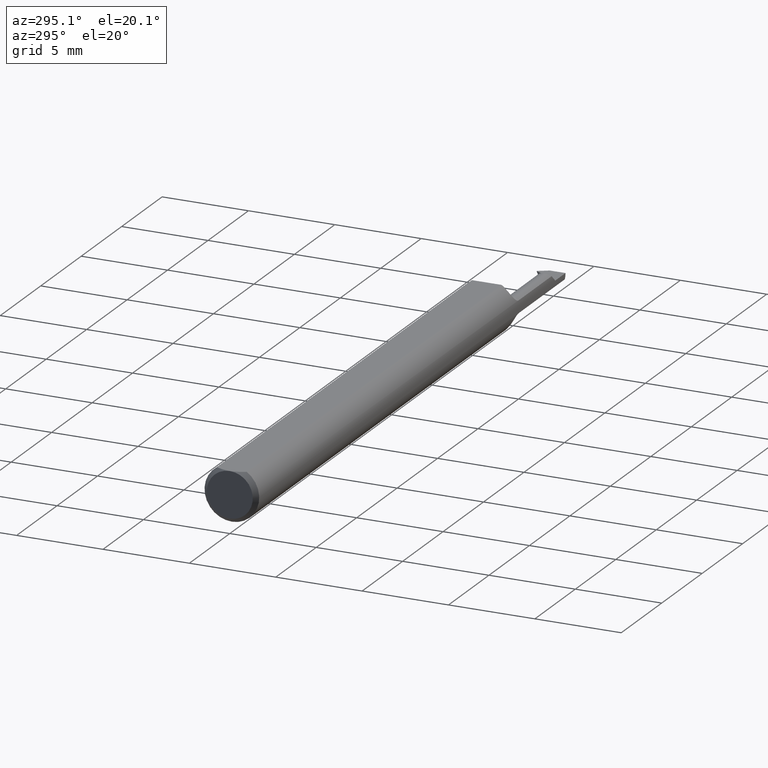
[diagram: clean part render]
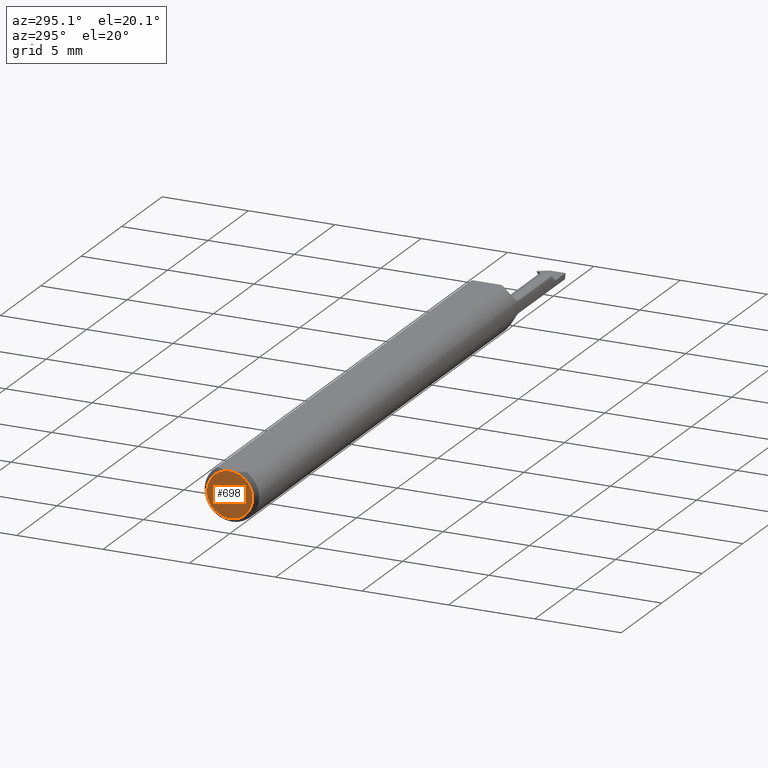
[diagram: same view with one face highlighted and labeled with its STEP entity id]
A machine part, auxiliary view. The second image highlights one B-rep face of the part: STEP entity #698.
In plain terms, the highlighted planar face has unit normal (1, 0, 0).
Its self-contained STEP definition (entity closure, byte-faithful):
#2 = DIRECTION ( 'NONE',  ( -1.000000000000000000, -0.000000000000000000, -0.000000000000000000 ) ) ;
#20 = DIRECTION ( 'NONE',  ( 0.000000000000000000, 0.000000000000000000, -1.000000000000000000 ) ) ;
#51 = DIRECTION ( 'NONE',  ( 0.000000000000000000, 0.000000000000000000, -1.000000000000000000 ) ) ;
#66 = CARTESIAN_POINT ( 'NONE',  ( 0.000000000000000000, 0.000000000000000000, 0.05234999999999997294 ) ) ;
#67 = ORIENTED_EDGE ( 'NONE', *, *, #639, .T. ) ;
#126 = DIRECTION ( 'NONE',  ( 1.000000000000000000, 0.000000000000000000, 0.000000000000000000 ) ) ;
#134 = CARTESIAN_POINT ( 'NONE',  ( 0.000000000000000000, 0.000000000000000000, 0.000000000000000000 ) ) ;
#137 = EDGE_CURVE ( 'NONE', #374, #363, #597, .T. ) ;
#230 = EDGE_LOOP ( 'NONE', ( #67, #707 ) ) ;
#284 = AXIS2_PLACEMENT_3D ( 'NONE', #668, #2, #51 ) ;
#294 = FACE_OUTER_BOUND ( 'NONE', #230, .T. ) ;
#297 = AXIS2_PLACEMENT_3D ( 'NONE', #670, #399, #658 ) ;
#363 = VERTEX_POINT ( 'NONE', #66 ) ;
#374 = VERTEX_POINT ( 'NONE', #448 ) ;
#399 = DIRECTION ( 'NONE',  ( -1.000000000000000000, -0.000000000000000000, -0.000000000000000000 ) ) ;
#441 = CIRCLE ( 'NONE', #297, 0.05235000000000005621 ) ;
#448 = CARTESIAN_POINT ( 'NONE',  ( 0.000000000000000000, 0.000000000000000000, -0.05235000000000005621 ) ) ;
#516 = PLANE ( 'NONE',  #584 ) ;
#584 = AXIS2_PLACEMENT_3D ( 'NONE', #134, #126, #20 ) ;
#597 = CIRCLE ( 'NONE', #284, 0.05235000000000005621 ) ;
#639 = EDGE_CURVE ( 'NONE', #363, #374, #441, .T. ) ;
#658 = DIRECTION ( 'NONE',  ( 0.000000000000000000, 0.000000000000000000, -1.000000000000000000 ) ) ;
#668 = CARTESIAN_POINT ( 'NONE',  ( 0.000000000000000000, 0.000000000000000000, 0.000000000000000000 ) ) ;
#670 = CARTESIAN_POINT ( 'NONE',  ( 0.000000000000000000, 0.000000000000000000, 0.000000000000000000 ) ) ;
#698 = ADVANCED_FACE ( 'NONE', ( #294 ), #516, .F. ) ;
#707 = ORIENTED_EDGE ( 'NONE', *, *, #137, .T. ) ;